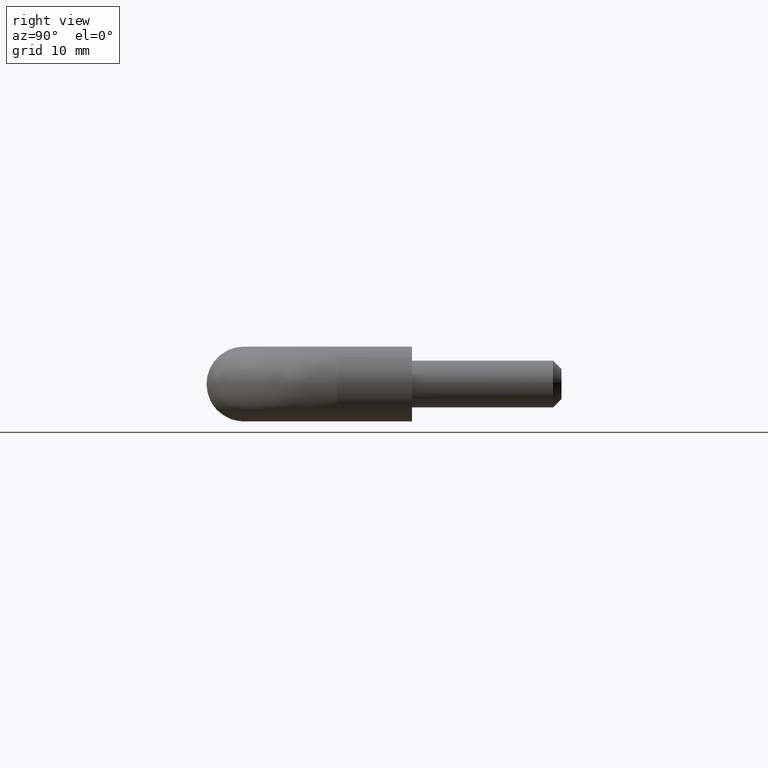
[diagram: clean part render]
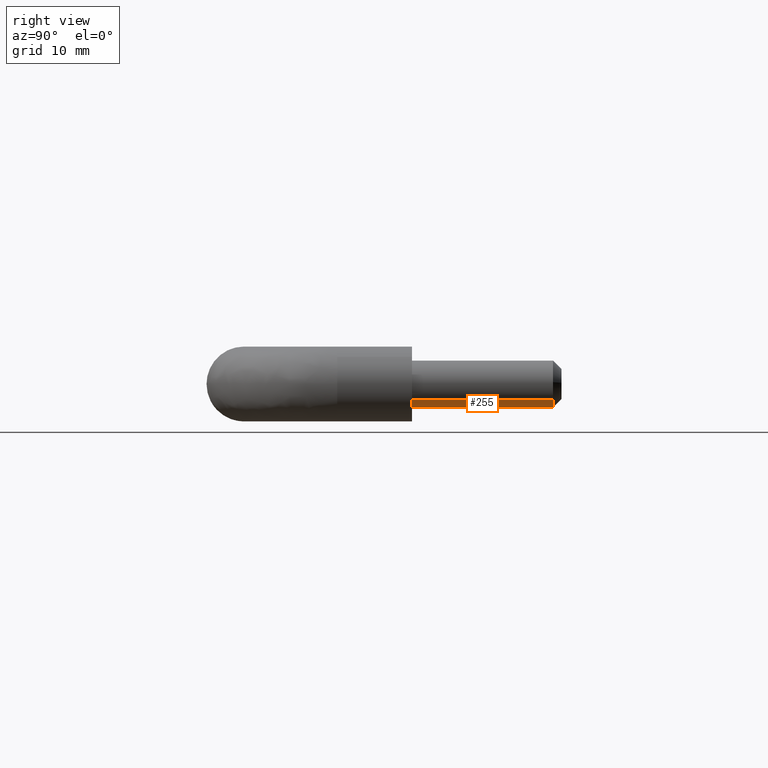
[diagram: same view with one face highlighted and labeled with its STEP entity id]
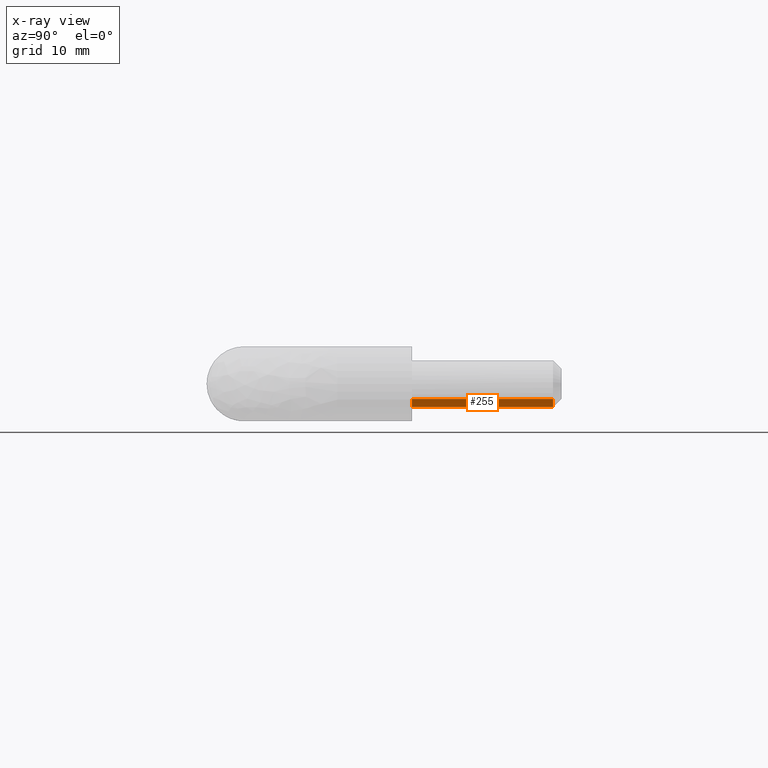
[diagram: x-ray of the same camera — body ghosted, the highlighted face saturated]
A machine part, right view. The second image highlights one B-rep face of the part: STEP entity #255.
The next image is the same camera in x-ray: the body ghosted, the highlighted face saturated — about 0% of this face is hidden behind the body in this view.
In plain terms, the highlighted face is a freeform B-spline surface patch.
Its self-contained STEP definition (entity closure, byte-faithful):
#68=CARTESIAN_POINT('',(61.901014913974286,7.549517E-015,-1.623620120855663));
#69=VERTEX_POINT('',#68);
#83=CARTESIAN_POINT('',(61.901014913974279,15.100000000000000,-1.623620120855665));
#84=VERTEX_POINT('',#83);
#85=CARTESIAN_POINT('',(61.901014913974279,15.100000000000000,-1.623620120855665));
#86=CARTESIAN_POINT('',(61.901014913974286,7.549517E-015,-1.623620120855663));
#87=QUASI_UNIFORM_CURVE('',1,(#85,#86),.UNSPECIFIED.,.F.,.U.);
#88=EDGE_CURVE('',#84,#69,#87,.T.);
#139=CARTESIAN_POINT('',(58.376380308541059,15.100000000000000,-1.901015280713559));
#140=VERTEX_POINT('',#139);
#154=CARTESIAN_POINT('',(58.376380295695952,5.689893E-015,-1.901015269742809));
#155=VERTEX_POINT('',#154);
#156=CARTESIAN_POINT('',(58.376380308541059,15.100000000000000,-1.901015280713559));
#157=CARTESIAN_POINT('',(58.376380295695952,5.689893E-015,-1.901015269742809));
#158=QUASI_UNIFORM_CURVE('',1,(#156,#157),.UNSPECIFIED.,.F.,.U.);
#159=EDGE_CURVE('',#140,#155,#158,.T.);
#194=CARTESIAN_POINT('',(58.376379879174543,15.477499999999999,-1.901014914000077));
#195=CARTESIAN_POINT('',(60.277394793174629,15.477499999999999,-3.524635034825535));
#196=CARTESIAN_POINT('',(61.901014914000079,15.477500000000010,-1.623620120825458));
#197=CARTESIAN_POINT('',(58.376379879174550,-0.386937499999996,-1.901014914000077));
#198=CARTESIAN_POINT('',(60.277394793174629,-0.386937499999995,-3.524635034825535));
#199=CARTESIAN_POINT('',(61.901014914000093,-0.386937499999994,-1.623620120825458));
#207=(BOUNDED_SURFACE()B_SPLINE_SURFACE(2,1,((#194,#197),(#195,#198),(#196,#199)),.UNSPECIFIED.,.F.,.F.,.U.)B_SPLINE_SURFACE_WITH_KNOTS((3,3),(2,2),(0.0,4.142135623730950),(0.0,15.864437499999999),.UNSPECIFIED.)GEOMETRIC_REPRESENTATION_ITEM()RATIONAL_B_SPLINE_SURFACE(((1.0,1.0),(0.707106781186548,0.707106781186548),(1.0,1.0)))REPRESENTATION_ITEM('')SURFACE());
#208=CARTESIAN_POINT('',(61.901014913974286,7.549517E-015,-1.623620120855664));
#209=CARTESIAN_POINT('',(61.152515786020139,6.938894E-015,-2.500000000000001));
#210=CARTESIAN_POINT('',(60.0,6.938894E-015,-2.500000000000000));
#211=CARTESIAN_POINT('',(59.077701929538406,6.938894E-015,-2.500000000000000));
#212=CARTESIAN_POINT('',(58.376380295695945,5.689893E-015,-1.901015269742808));
#220=(BOUNDED_CURVE()B_SPLINE_CURVE(2,(#208,#209,#210,#211,#212),.UNSPECIFIED.,.F.,.U.)B_SPLINE_CURVE_WITH_KNOTS((3,2,3),(0.113143161354176,0.250000000000000,0.363143095126605),.UNSPECIFIED.)CURVE()GEOMETRIC_REPRESENTATION_ITEM()RATIONAL_B_SPLINE_CURVE((0.854871031638087,0.839662240049566,1.0,0.867444618727408,0.854871046357762))REPRESENTATION_ITEM(''));
#221=EDGE_CURVE('',#69,#155,#220,.T.);
#222=ORIENTED_EDGE('',*,*,#221,.T.);
#223=ORIENTED_EDGE('',*,*,#159,.F.);
#224=CARTESIAN_POINT('',(60.0,15.100000000000000,-2.500000000000000));
#225=VERTEX_POINT('',#224);
#226=CARTESIAN_POINT('',(60.0,15.100000000000000,-2.500000000000000));
#227=CARTESIAN_POINT('',(59.077701948729924,15.100000000000003,-2.500000000000000));
#228=CARTESIAN_POINT('',(58.376380308541059,15.100000000000003,-1.901015280713559));
#236=(BOUNDED_CURVE()B_SPLINE_CURVE(2,(#226,#227,#228),.UNSPECIFIED.,.F.,.U.)B_SPLINE_CURVE_WITH_KNOTS((3,3),(0.0,0.113143093084361),.UNSPECIFIED.)CURVE()GEOMETRIC_REPRESENTATION_ITEM()RATIONAL_B_SPLINE_CURVE((1.0,0.867444621120046,0.854871046811671))REPRESENTATION_ITEM(''));
#237=EDGE_CURVE('',#225,#140,#236,.T.);
#238=ORIENTED_EDGE('',*,*,#237,.F.);
#239=CARTESIAN_POINT('',(61.901014913974279,15.100000000000003,-1.623620120855665));
#240=CARTESIAN_POINT('',(61.152515786020125,15.100000000000001,-2.500000000000000));
#241=CARTESIAN_POINT('',(60.0,15.100000000000000,-2.500000000000000));
#249=(BOUNDED_CURVE()B_SPLINE_CURVE(2,(#239,#240,#241),.UNSPECIFIED.,.F.,.U.)B_SPLINE_CURVE_WITH_KNOTS((3,3),(0.863143161354177,1.0),.UNSPECIFIED.)CURVE()GEOMETRIC_REPRESENTATION_ITEM()RATIONAL_B_SPLINE_CURVE((0.854871031638087,0.839662240049566,1.0))REPRESENTATION_ITEM(''));
#250=EDGE_CURVE('',#84,#225,#249,.T.);
#251=ORIENTED_EDGE('',*,*,#250,.F.);
#252=ORIENTED_EDGE('',*,*,#88,.T.);
#253=EDGE_LOOP('',(#222,#223,#238,#251,#252));
#254=FACE_OUTER_BOUND('',#253,.T.);
#255=ADVANCED_FACE('',(#254),#207,.T.);